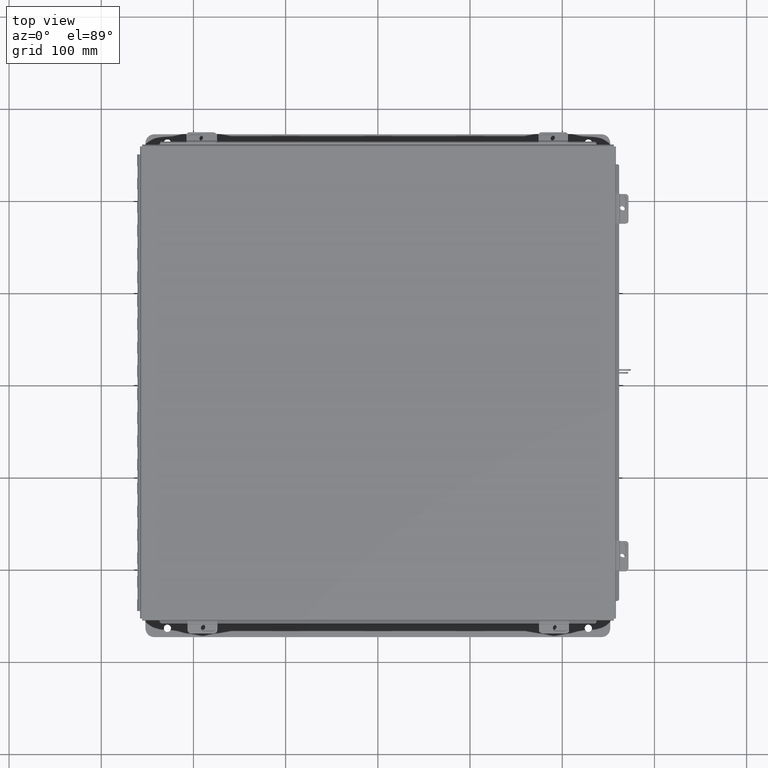
[diagram: clean part render]
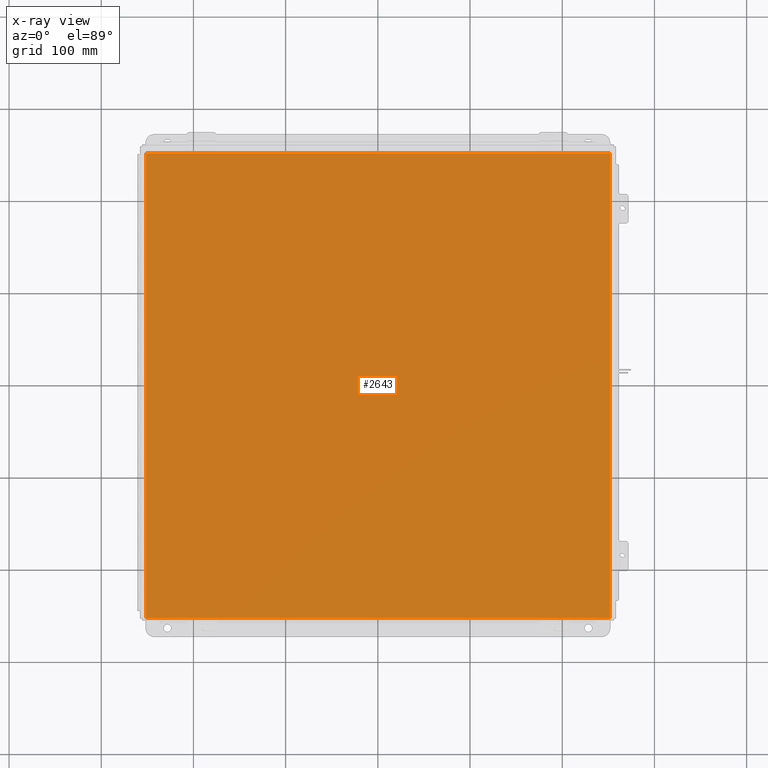
[diagram: x-ray — body ghosted, one internal face saturated and labeled with its STEP entity id]
A machine part, top view, then the same camera in x-ray: the body is ghosted and one INTERNAL B-rep face — a face not visible from any outside direction — is saturated and labeled: STEP entity #2643.
In plain terms, the highlighted planar face has unit normal (0, 0, -1).
Its self-contained STEP definition (entity closure, byte-faithful):
#130 = ORIENTED_EDGE ( 'NONE', *, *, #5202, .F. ) ;
#1236 = CARTESIAN_POINT ( 'NONE',  ( -9.912299999999998300, -9.925299999999998200, 5.122214988120493500E-017 ) ) ;
#2643 = ADVANCED_FACE ( 'NONE', ( #4584 ), #4425, .F. ) ;
#3447 = CARTESIAN_POINT ( 'NONE',  ( -9.999999999999998200, 9.925300000000001800, 0.0000000000000000000 ) ) ;
#4425 = PLANE ( 'NONE',  #20546 ) ;
#4459 = VERTEX_POINT ( 'NONE', #11301 ) ;
#4584 = FACE_OUTER_BOUND ( 'NONE', #7672, .T. ) ;
#5167 = DIRECTION ( 'NONE',  ( -1.000000000000000000, -0.0000000000000000000, -0.0000000000000000000 ) ) ;
#5202 = EDGE_CURVE ( 'NONE', #8690, #14679, #7248, .T. ) ;
#5691 = VECTOR ( 'NONE', #17616, 39.37007874015748100 ) ;
#6183 = DIRECTION ( 'NONE',  ( 0.0000000000000000000, 0.0000000000000000000, -1.000000000000000000 ) ) ;
#6274 = EDGE_CURVE ( 'NONE', #4459, #14679, #11778, .T. ) ;
#7248 = LINE ( 'NONE', #1236, #16396 ) ;
#7672 = EDGE_LOOP ( 'NONE', ( #16973, #14248, #130, #20927 ) ) ;
#8690 = VERTEX_POINT ( 'NONE', #18114 ) ;
#9780 = DIRECTION ( 'NONE',  ( -0.0000000000000000000, -1.000000000000000000, -0.0000000000000000000 ) ) ;
#11154 = CARTESIAN_POINT ( 'NONE',  ( -9.912299999999998300, 9.925300000000001800, 5.122214988120493500E-017 ) ) ;
#11301 = CARTESIAN_POINT ( 'NONE',  ( 9.912300000000001900, 9.925299999999998200, 5.122214988120493500E-017 ) ) ;
#11389 = LINE ( 'NONE', #12496, #5691 ) ;
#11778 = LINE ( 'NONE', #3447, #20448 ) ;
#11816 = VECTOR ( 'NONE', #9780, 39.37007874015748100 ) ;
#12410 = EDGE_CURVE ( 'NONE', #4459, #12920, #21016, .T. ) ;
#12496 = CARTESIAN_POINT ( 'NONE',  ( -9.999999999999998200, -9.925299999999998200, 0.0000000000000000000 ) ) ;
#12920 = VERTEX_POINT ( 'NONE', #14335 ) ;
#13303 = DIRECTION ( 'NONE',  ( -0.0000000000000000000, 1.000000000000000000, -0.0000000000000000000 ) ) ;
#14248 = ORIENTED_EDGE ( 'NONE', *, *, #6274, .T. ) ;
#14335 = CARTESIAN_POINT ( 'NONE',  ( 9.912300000000001900, -9.925299999999998200, 5.122214988120493500E-017 ) ) ;
#14679 = VERTEX_POINT ( 'NONE', #11154 ) ;
#14900 = CARTESIAN_POINT ( 'NONE',  ( 9.912300000000001900, 9.925300000000001800, 5.122214988120493500E-017 ) ) ;
#16396 = VECTOR ( 'NONE', #13303, 39.37007874015748100 ) ;
#16973 = ORIENTED_EDGE ( 'NONE', *, *, #12410, .F. ) ;
#17616 = DIRECTION ( 'NONE',  ( 1.000000000000000000, 0.0000000000000000000, 0.0000000000000000000 ) ) ;
#18114 = CARTESIAN_POINT ( 'NONE',  ( -9.912299999999998300, -9.925299999999992900, 5.122214988120493500E-017 ) ) ;
#18223 = DIRECTION ( 'NONE',  ( -1.000000000000000000, 0.0000000000000000000, -0.0000000000000000000 ) ) ;
#20375 = EDGE_CURVE ( 'NONE', #8690, #12920, #11389, .T. ) ;
#20448 = VECTOR ( 'NONE', #5167, 39.37007874015748100 ) ;
#20546 = AXIS2_PLACEMENT_3D ( 'NONE', #21663, #6183, #18223 ) ;
#20927 = ORIENTED_EDGE ( 'NONE', *, *, #20375, .T. ) ;
#21016 = LINE ( 'NONE', #14900, #11816 ) ;
#21663 = CARTESIAN_POINT ( 'NONE',  ( 0.0000000000000000000, 0.0000000000000000000, 0.0000000000000000000 ) ) ;